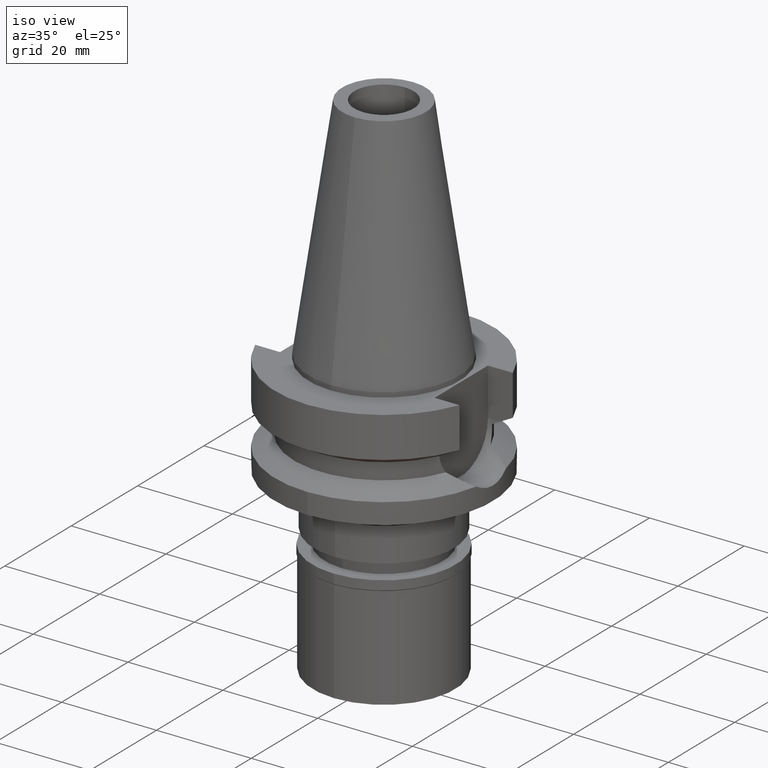
[diagram: clean part render]
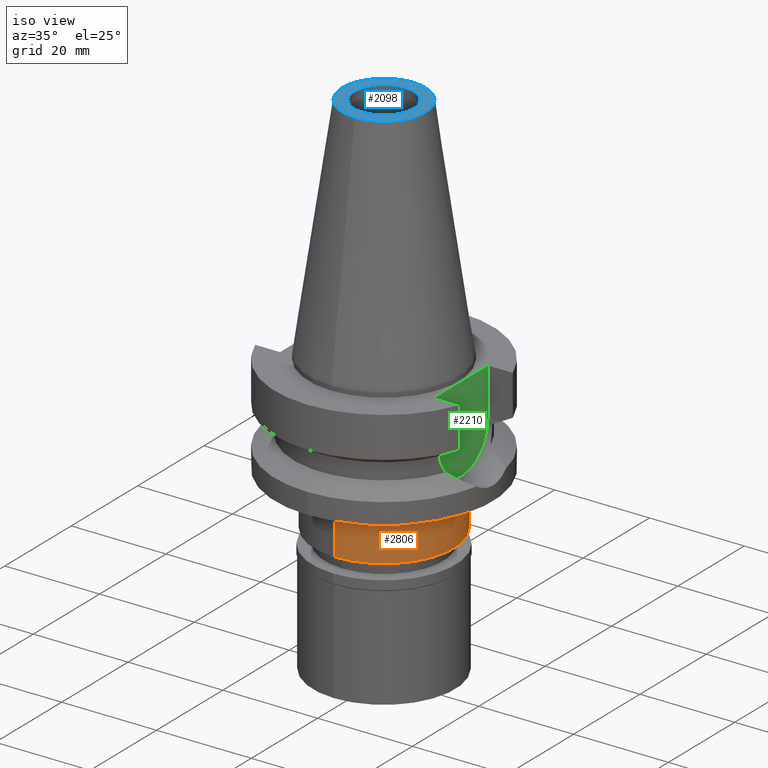
[diagram: same view with three faces highlighted in distinct colors, each labeled with its STEP entity id]
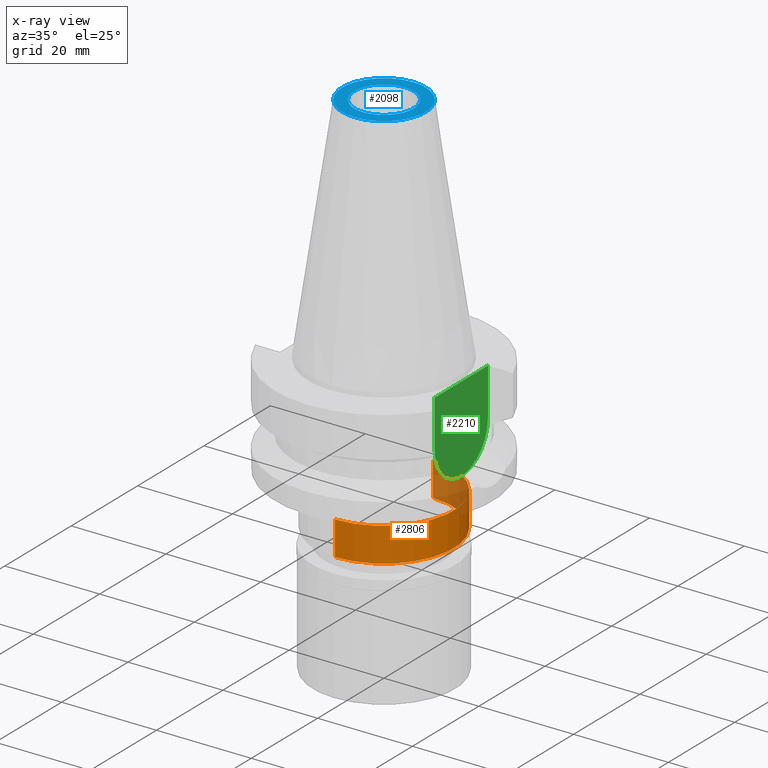
[diagram: x-ray of the same camera — body ghosted, the three highlighted faces saturated]
A machine part, iso view with three faces highlighted in distinct colors.
The next image is the same camera in x-ray (body ghosted, the three faces saturated) — at least one of them is partly hidden behind the body in this view.
Their STEP definitions:

[orange] entity #2806 — the highlighted cylindrical surface (partial cylindrical patch) has radius 14.75 mm, axis along (0, 0, -1).
#6 = EDGE_CURVE ( 'NONE', #80, #2698, #828, .T. ) ;
#80 = VERTEX_POINT ( 'NONE', #2189 ) ;
#261 = DIRECTION ( 'NONE',  ( 0.0000000000000000000, -1.000000000000000000, 0.0000000000000000000 ) ) ;
#277 = ORIENTED_EDGE ( 'NONE', *, *, #2005, .T. ) ;
#429 = DIRECTION ( 'NONE',  ( 0.0000000000000000000, 0.0000000000000000000, -1.000000000000000000 ) ) ;
#467 = DIRECTION ( 'NONE',  ( 0.0000000000000000000, 0.0000000000000000000, -1.000000000000000000 ) ) ;
#531 = VECTOR ( 'NONE', #1748, 1000.000000000000000 ) ;
#592 = EDGE_CURVE ( 'NONE', #640, #2000, #1505, .T. ) ;
#640 = VERTEX_POINT ( 'NONE', #2643 ) ;
#666 = CYLINDRICAL_SURFACE ( 'NONE', #966, 14.75000000000000000 ) ;
#826 = VECTOR ( 'NONE', #1041, 1000.000000000000000 ) ;
#828 = LINE ( 'NONE', #1978, #531 ) ;
#926 = AXIS2_PLACEMENT_3D ( 'NONE', #2785, #971, #261 ) ;
#966 = AXIS2_PLACEMENT_3D ( 'NONE', #2242, #429, #2483 ) ;
#971 = DIRECTION ( 'NONE',  ( 0.0000000000000000000, 0.0000000000000000000, 1.000000000000000000 ) ) ;
#1041 = DIRECTION ( 'NONE',  ( 0.0000000000000000000, 0.0000000000000000000, -1.000000000000000000 ) ) ;
#1049 = ORIENTED_EDGE ( 'NONE', *, *, #1883, .T. ) ;
#1374 = CARTESIAN_POINT ( 'NONE',  ( 0.0000000000000000000, -14.75000000000000000, -33.20000000000000284 ) ) ;
#1446 = ORIENTED_EDGE ( 'NONE', *, *, #6, .F. ) ;
#1505 = LINE ( 'NONE', #2385, #826 ) ;
#1564 = FACE_OUTER_BOUND ( 'NONE', #2934, .T. ) ;
#1748 = DIRECTION ( 'NONE',  ( 0.0000000000000000000, 0.0000000000000000000, -1.000000000000000000 ) ) ;
#1883 = EDGE_CURVE ( 'NONE', #2000, #2698, #2022, .T. ) ;
#1977 = CIRCLE ( 'NONE', #2801, 14.75000000000000000 ) ;
#1978 = CARTESIAN_POINT ( 'NONE',  ( 0.0000000000000000000, 14.75000000000000000, -26.00000000000000000 ) ) ;
#2000 = VERTEX_POINT ( 'NONE', #1374 ) ;
#2005 = EDGE_CURVE ( 'NONE', #80, #640, #1977, .T. ) ;
#2022 = CIRCLE ( 'NONE', #926, 14.75000000000000000 ) ;
#2189 = CARTESIAN_POINT ( 'NONE',  ( 0.0000000000000000000, 14.75000000000000000, -26.00000000000000000 ) ) ;
#2217 = CARTESIAN_POINT ( 'NONE',  ( 0.0000000000000000000, 14.75000000000000000, -33.20000000000000284 ) ) ;
#2242 = CARTESIAN_POINT ( 'NONE',  ( 0.0000000000000000000, 1.877628472452999886E-14, 53.32000000000000028 ) ) ;
#2385 = CARTESIAN_POINT ( 'NONE',  ( 0.0000000000000000000, -14.75000000000000000, -26.00000000000000000 ) ) ;
#2483 = DIRECTION ( 'NONE',  ( 0.0000000000000000000, -1.000000000000000000, 0.0000000000000000000 ) ) ;
#2526 = CARTESIAN_POINT ( 'NONE',  ( 0.0000000000000000000, 0.0000000000000000000, -26.00000000000000000 ) ) ;
#2608 = ORIENTED_EDGE ( 'NONE', *, *, #592, .T. ) ;
#2643 = CARTESIAN_POINT ( 'NONE',  ( 0.0000000000000000000, -14.75000000000000000, -26.00000000000000000 ) ) ;
#2698 = VERTEX_POINT ( 'NONE', #2217 ) ;
#2772 = DIRECTION ( 'NONE',  ( 0.0000000000000000000, 1.000000000000000000, 0.0000000000000000000 ) ) ;
#2785 = CARTESIAN_POINT ( 'NONE',  ( 0.0000000000000000000, 1.877628472452999886E-14, -33.20000000000000284 ) ) ;
#2801 = AXIS2_PLACEMENT_3D ( 'NONE', #2526, #467, #2772 ) ;
#2806 = ADVANCED_FACE ( 'NONE', ( #1564 ), #666, .T. ) ;
#2934 = EDGE_LOOP ( 'NONE', ( #277, #2608, #1049, #1446 ) ) ;

[blue] entity #2098 — the highlighted planar face has unit normal (0, 0, -1).
#107 = VERTEX_POINT ( 'NONE', #2038 ) ;
#186 = EDGE_CURVE ( 'NONE', #434, #2602, #2443, .T. ) ;
#331 = FACE_BOUND ( 'NONE', #1482, .T. ) ;
#358 = AXIS2_PLACEMENT_3D ( 'NONE', #1339, #1102, #2238 ) ;
#366 = VERTEX_POINT ( 'NONE', #1655 ) ;
#409 = DIRECTION ( 'NONE',  ( 0.0000000000000000000, 0.0000000000000000000, -1.000000000000000000 ) ) ;
#434 = VERTEX_POINT ( 'NONE', #526 ) ;
#526 = CARTESIAN_POINT ( 'NONE',  ( 0.0000000000000000000, 8.816791732783000768, 48.39999999999999858 ) ) ;
#528 = EDGE_LOOP ( 'NONE', ( #1226, #2877 ) ) ;
#593 = AXIS2_PLACEMENT_3D ( 'NONE', #2387, #1243, #2875 ) ;
#626 = ORIENTED_EDGE ( 'NONE', *, *, #1122, .F. ) ;
#646 = DIRECTION ( 'NONE',  ( 0.0000000000000000000, -1.000000000000000000, 0.0000000000000000000 ) ) ;
#655 = CARTESIAN_POINT ( 'NONE',  ( 0.0000000000000000000, 1.877628472452999886E-14, 48.39999999999999858 ) ) ;
#707 = EDGE_CURVE ( 'NONE', #2602, #434, #1967, .T. ) ;
#935 = DIRECTION ( 'NONE',  ( 0.0000000000000000000, 1.000000000000000000, 0.0000000000000000000 ) ) ;
#961 = CARTESIAN_POINT ( 'NONE',  ( 0.0000000000000000000, -8.816791732783000768, 48.39999999999999858 ) ) ;
#1102 = DIRECTION ( 'NONE',  ( 0.0000000000000000000, 0.0000000000000000000, 1.000000000000000000 ) ) ;
#1122 = EDGE_CURVE ( 'NONE', #107, #366, #1877, .T. ) ;
#1161 = AXIS2_PLACEMENT_3D ( 'NONE', #2023, #2223, #646 ) ;
#1226 = ORIENTED_EDGE ( 'NONE', *, *, #186, .F. ) ;
#1243 = DIRECTION ( 'NONE',  ( 0.0000000000000000000, 0.0000000000000000000, -1.000000000000000000 ) ) ;
#1339 = CARTESIAN_POINT ( 'NONE',  ( 0.0000000000000000000, 1.877628472452999886E-14, 48.39999999999999858 ) ) ;
#1366 = DIRECTION ( 'NONE',  ( 0.0000000000000000000, 0.0000000000000000000, 1.000000000000000000 ) ) ;
#1445 = AXIS2_PLACEMENT_3D ( 'NONE', #2523, #409, #2010 ) ;
#1482 = EDGE_LOOP ( 'NONE', ( #626, #2854 ) ) ;
#1507 = PLANE ( 'NONE',  #593 ) ;
#1655 = CARTESIAN_POINT ( 'NONE',  ( 0.0000000000000000000, -6.250000000000000000, 48.39999999999999858 ) ) ;
#1877 = CIRCLE ( 'NONE', #1972, 6.250000000000000000 ) ;
#1967 = CIRCLE ( 'NONE', #1161, 8.816791732783000768 ) ;
#1972 = AXIS2_PLACEMENT_3D ( 'NONE', #655, #1366, #935 ) ;
#2010 = DIRECTION ( 'NONE',  ( 0.0000000000000000000, 1.000000000000000000, 0.0000000000000000000 ) ) ;
#2023 = CARTESIAN_POINT ( 'NONE',  ( 0.0000000000000000000, 1.521011324540999938E-14, 48.39999999999999858 ) ) ;
#2038 = CARTESIAN_POINT ( 'NONE',  ( 0.0000000000000000000, 6.250000000000000000, 48.39999999999999858 ) ) ;
#2098 = ADVANCED_FACE ( 'NONE', ( #2588, #331 ), #1507, .F. ) ;
#2186 = EDGE_CURVE ( 'NONE', #366, #107, #2406, .T. ) ;
#2223 = DIRECTION ( 'NONE',  ( 0.0000000000000000000, 0.0000000000000000000, -1.000000000000000000 ) ) ;
#2238 = DIRECTION ( 'NONE',  ( 0.0000000000000000000, -1.000000000000000000, 0.0000000000000000000 ) ) ;
#2387 = CARTESIAN_POINT ( 'NONE',  ( 0.0000000000000000000, 1.817375849934999910E-14, 48.39999999999999858 ) ) ;
#2406 = CIRCLE ( 'NONE', #358, 6.250000000000000000 ) ;
#2443 = CIRCLE ( 'NONE', #1445, 8.816791732783000768 ) ;
#2523 = CARTESIAN_POINT ( 'NONE',  ( 0.0000000000000000000, 1.521011324540999938E-14, 48.39999999999999858 ) ) ;
#2588 = FACE_OUTER_BOUND ( 'NONE', #528, .T. ) ;
#2602 = VERTEX_POINT ( 'NONE', #961 ) ;
#2854 = ORIENTED_EDGE ( 'NONE', *, *, #2186, .F. ) ;
#2875 = DIRECTION ( 'NONE',  ( 0.0000000000000000000, -1.000000000000000000, 0.0000000000000000000 ) ) ;
#2877 = ORIENTED_EDGE ( 'NONE', *, *, #707, .F. ) ;

[green] entity #2210 — the highlighted planar face has unit normal (1, 0, 0).
#9 = VERTEX_POINT ( 'NONE', #2658 ) ;
#15 = LINE ( 'NONE', #2037, #2305 ) ;
#172 = FACE_OUTER_BOUND ( 'NONE', #2878, .T. ) ;
#176 = ORIENTED_EDGE ( 'NONE', *, *, #1849, .F. ) ;
#307 = VERTEX_POINT ( 'NONE', #2355 ) ;
#314 = VERTEX_POINT ( 'NONE', #2067 ) ;
#349 = LINE ( 'NONE', #1063, #2932 ) ;
#364 = DIRECTION ( 'NONE',  ( 0.0000000000000000000, 0.0000000000000000000, 1.000000000000000000 ) ) ;
#416 = VERTEX_POINT ( 'NONE', #1180 ) ;
#878 = AXIS2_PLACEMENT_3D ( 'NONE', #2931, #1123, #1075 ) ;
#920 = DIRECTION ( 'NONE',  ( 0.0000000000000000000, -1.000000000000000000, 0.0000000000000000000 ) ) ;
#1063 = CARTESIAN_POINT ( 'NONE',  ( 16.29999999999999716, -8.050000000000000711, -10.94999999999999929 ) ) ;
#1075 = DIRECTION ( 'NONE',  ( 0.0000000000000000000, 1.000000000000000000, 0.0000000000000000000 ) ) ;
#1105 = ORIENTED_EDGE ( 'NONE', *, *, #1461, .F. ) ;
#1123 = DIRECTION ( 'NONE',  ( 1.000000000000000000, 0.0000000000000000000, 0.0000000000000000000 ) ) ;
#1180 = CARTESIAN_POINT ( 'NONE',  ( 16.29999999999999716, -8.050000000000000711, -10.94999999999999929 ) ) ;
#1461 = EDGE_CURVE ( 'NONE', #416, #9, #349, .T. ) ;
#1566 = ORIENTED_EDGE ( 'NONE', *, *, #1790, .T. ) ;
#1582 = EDGE_CURVE ( 'NONE', #314, #307, #1797, .T. ) ;
#1596 = DIRECTION ( 'NONE',  ( 0.0000000000000000000, 0.0000000000000000000, -1.000000000000000000 ) ) ;
#1790 = EDGE_CURVE ( 'NONE', #314, #9, #15, .T. ) ;
#1797 = LINE ( 'NONE', #2482, #1976 ) ;
#1820 = CARTESIAN_POINT ( 'NONE',  ( 16.29999999999999716, 0.0000000000000000000, -10.94999999999999929 ) ) ;
#1849 = EDGE_CURVE ( 'NONE', #307, #416, #2548, .T. ) ;
#1881 = DIRECTION ( 'NONE',  ( 0.0000000000000000000, 0.0000000000000000000, -1.000000000000000000 ) ) ;
#1976 = VECTOR ( 'NONE', #1596, 1000.000000000000000 ) ;
#2011 = PLANE ( 'NONE',  #878 ) ;
#2037 = CARTESIAN_POINT ( 'NONE',  ( 16.29999999999999716, 8.050000000000000711, -1.000000000000000000 ) ) ;
#2067 = CARTESIAN_POINT ( 'NONE',  ( 16.29999999999999716, 8.050000000000000711, -1.000000000000000000 ) ) ;
#2210 = ADVANCED_FACE ( 'NONE', ( #172 ), #2011, .T. ) ;
#2268 = ORIENTED_EDGE ( 'NONE', *, *, #1582, .F. ) ;
#2286 = DIRECTION ( 'NONE',  ( -1.000000000000000000, 0.0000000000000000000, 0.0000000000000000000 ) ) ;
#2305 = VECTOR ( 'NONE', #920, 1000.000000000000000 ) ;
#2355 = CARTESIAN_POINT ( 'NONE',  ( 16.29999999999999716, 8.050000000000000711, -10.94999999999999929 ) ) ;
#2482 = CARTESIAN_POINT ( 'NONE',  ( 16.29999999999999716, 8.050000000000000711, -1.000000000000000000 ) ) ;
#2502 = AXIS2_PLACEMENT_3D ( 'NONE', #1820, #2286, #1881 ) ;
#2548 = CIRCLE ( 'NONE', #2502, 8.050000000000000711 ) ;
#2658 = CARTESIAN_POINT ( 'NONE',  ( 16.29999999999999716, -8.050000000000000711, -1.000000000000000000 ) ) ;
#2878 = EDGE_LOOP ( 'NONE', ( #1105, #176, #2268, #1566 ) ) ;
#2931 = CARTESIAN_POINT ( 'NONE',  ( 16.29999999999999716, 0.0000000000000000000, 0.0000000000000000000 ) ) ;
#2932 = VECTOR ( 'NONE', #364, 1000.000000000000000 ) ;